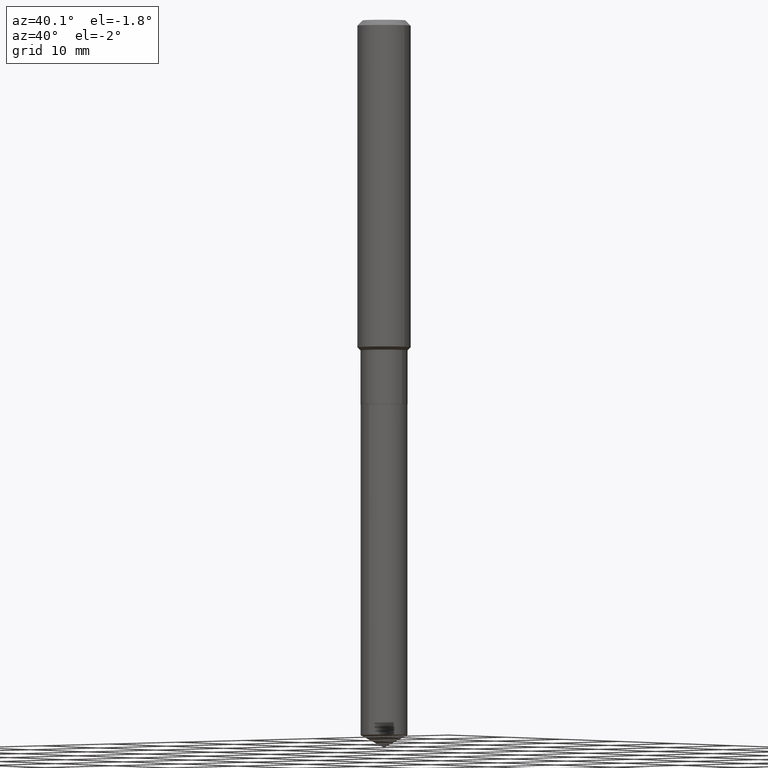
[diagram: clean part render]
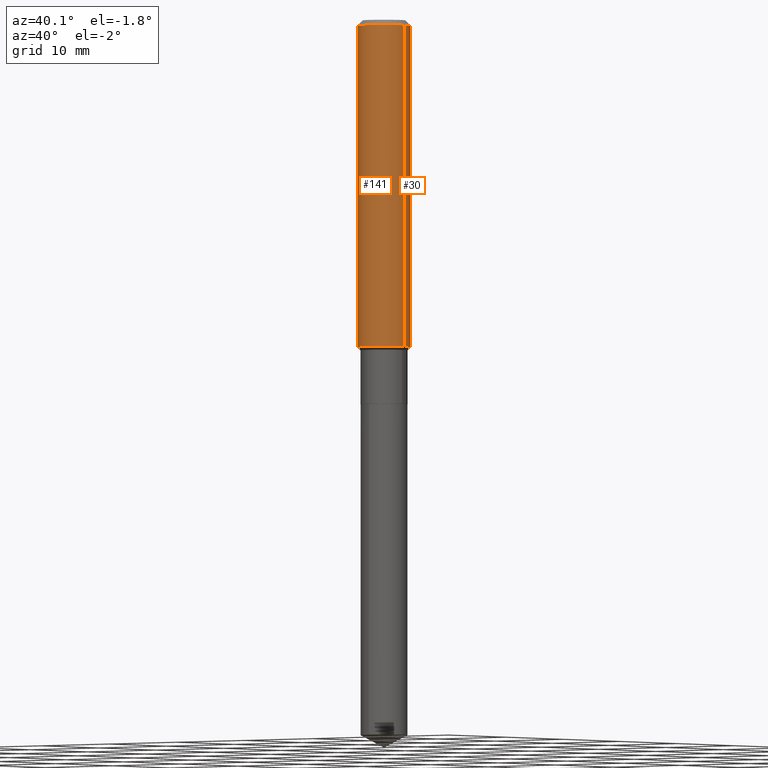
[diagram: same view with one multi-face feature highlighted, each face labeled with its STEP entity id]
A machine part, auxiliary view. The highlighted faces form ONE feature: a constant-radius fillet chain: 2 tangent blend faces with common blend radius 2.9997 mm. The faces share edges in the B-rep.
Their STEP definitions:
[1] entity #141 (Cylinder):
#2 = ORIENTED_EDGE ( 'NONE', *, *, #68, .F. ) ;
#24 = VECTOR ( 'NONE', #172, 39.37007874015748143 ) ;
#45 = VERTEX_POINT ( 'NONE', #49 ) ;
#47 = ORIENTED_EDGE ( 'NONE', *, *, #80, .F. ) ;
#49 = CARTESIAN_POINT ( 'NONE',  ( -0.1180999999999999966, -1.735065847976289334E-15, -0.02362000000000014088 ) ) ;
#61 = FACE_OUTER_BOUND ( 'NONE', #395, .T. ) ;
#68 = EDGE_CURVE ( 'NONE', #235, #45, #474, .T. ) ;
#80 = EDGE_CURVE ( 'NONE', #45, #199, #292, .T. ) ;
#86 = DIRECTION ( 'NONE',  ( 1.000000000000000000, -6.982962677686263555E-15, 0.000000000000000000 ) ) ;
#140 = CARTESIAN_POINT ( 'NONE',  ( 0.1180999999999999966, -9.071566814582237199E-16, -0.02362000000000014088 ) ) ;
#141 = ADVANCED_FACE ( 'NONE', ( #61 ), #176, .T. ) ;
#146 = DIRECTION ( 'NONE',  ( -2.445468806185136877E-29, 3.491481338843145188E-15, 1.000000000000000000 ) ) ;
#172 = DIRECTION ( 'NONE',  ( -2.445468806185136877E-29, 3.491481338843145188E-15, 1.000000000000000000 ) ) ;
#176 = CYLINDRICAL_SURFACE ( 'NONE', #397, 0.1181000000000000799 ) ;
#181 = LINE ( 'NONE', #486, #464 ) ;
#199 = VERTEX_POINT ( 'NONE', #140 ) ;
#235 = VERTEX_POINT ( 'NONE', #482 ) ;
#260 = CARTESIAN_POINT ( 'NONE',  ( 0.000000000000000000, 0.000000000000000000, 0.000000000000000000 ) ) ;
#265 = ORIENTED_EDGE ( 'NONE', *, *, #475, .T. ) ;
#272 = CARTESIAN_POINT ( 'NONE',  ( 3.548252964334323940E-29, -5.065964848594461971E-15, -1.450949999999999962 ) ) ;
#275 = AXIS2_PLACEMENT_3D ( 'NONE', #272, #417, #86 ) ;
#292 = CIRCLE ( 'NONE', #313, 0.1180999999999999966 ) ;
#312 = DIRECTION ( 'NONE',  ( -2.445468806185136597E-29, 3.491481338843145583E-15, 1.000000000000000000 ) ) ;
#313 = AXIS2_PLACEMENT_3D ( 'NONE', #362, #312, #463 ) ;
#327 = DIRECTION ( 'NONE',  ( -2.445468806185136597E-29, 3.491481338843145583E-15, 1.000000000000000000 ) ) ;
#342 = VERTEX_POINT ( 'NONE', #488 ) ;
#362 = CARTESIAN_POINT ( 'NONE',  ( 5.776197320209327532E-31, -8.246878922347559293E-17, -0.02362000000000014088 ) ) ;
#388 = CARTESIAN_POINT ( 'NONE',  ( -0.1181000000000000799, 8.391509709326788873E-16, -5.809262341591047988E-30 ) ) ;
#395 = EDGE_LOOP ( 'NONE', ( #2, #412, #265, #47 ) ) ;
#397 = AXIS2_PLACEMENT_3D ( 'NONE', #260, #327, #478 ) ;
#412 = ORIENTED_EDGE ( 'NONE', *, *, #447, .T. ) ;
#417 = DIRECTION ( 'NONE',  ( -2.445468806185136597E-29, 3.491481338843145583E-15, 1.000000000000000000 ) ) ;
#447 = EDGE_CURVE ( 'NONE', #235, #342, #472, .T. ) ;
#463 = DIRECTION ( 'NONE',  ( 1.000000000000000000, -6.982962677686266711E-15, 0.000000000000000000 ) ) ;
#464 = VECTOR ( 'NONE', #146, 39.37007874015748143 ) ;
#472 = CIRCLE ( 'NONE', #275, 0.1181000000000001632 ) ;
#474 = LINE ( 'NONE', #388, #24 ) ;
#475 = EDGE_CURVE ( 'NONE', #342, #199, #181, .T. ) ;
#478 = DIRECTION ( 'NONE',  ( 1.000000000000000000, -6.982962677686266711E-15, 4.876176775795936353E-29 ) ) ;
#482 = CARTESIAN_POINT ( 'NONE',  ( -0.1181000000000001632, -4.226813877661782197E-15, -1.450949999999999962 ) ) ;
#486 = CARTESIAN_POINT ( 'NONE',  ( 0.1181000000000000799, -8.246878922347486570E-16, 5.758764772215004644E-30 ) ) ;
#488 = CARTESIAN_POINT ( 'NONE',  ( 0.1181000000000001632, -5.890652740829211023E-15, -1.450949999999999962 ) ) ;
[2] entity #30 (Cylinder):
#24 = VECTOR ( 'NONE', #172, 39.37007874015748143 ) ;
#27 = EDGE_CURVE ( 'NONE', #199, #45, #252, .T. ) ;
#29 = AXIS2_PLACEMENT_3D ( 'NONE', #434, #105, #107 ) ;
#30 = ADVANCED_FACE ( 'NONE', ( #396 ), #390, .T. ) ;
#36 = ORIENTED_EDGE ( 'NONE', *, *, #475, .F. ) ;
#45 = VERTEX_POINT ( 'NONE', #49 ) ;
#49 = CARTESIAN_POINT ( 'NONE',  ( -0.1180999999999999966, -1.735065847976289334E-15, -0.02362000000000014088 ) ) ;
#56 = DIRECTION ( 'NONE',  ( -2.445468806185136597E-29, 3.491481338843145583E-15, 1.000000000000000000 ) ) ;
#60 = ORIENTED_EDGE ( 'NONE', *, *, #68, .T. ) ;
#68 = EDGE_CURVE ( 'NONE', #235, #45, #474, .T. ) ;
#102 = AXIS2_PLACEMENT_3D ( 'NONE', #394, #129, #286 ) ;
#105 = DIRECTION ( 'NONE',  ( -2.445468806185136597E-29, 3.491481338843145583E-15, 1.000000000000000000 ) ) ;
#107 = DIRECTION ( 'NONE',  ( 1.000000000000000000, -6.982962677686263555E-15, 0.000000000000000000 ) ) ;
#129 = DIRECTION ( 'NONE',  ( -2.445468806185136597E-29, 3.491481338843145583E-15, 1.000000000000000000 ) ) ;
#135 = EDGE_CURVE ( 'NONE', #342, #235, #298, .T. ) ;
#140 = CARTESIAN_POINT ( 'NONE',  ( 0.1180999999999999966, -9.071566814582237199E-16, -0.02362000000000014088 ) ) ;
#146 = DIRECTION ( 'NONE',  ( -2.445468806185136877E-29, 3.491481338843145188E-15, 1.000000000000000000 ) ) ;
#172 = DIRECTION ( 'NONE',  ( -2.445468806185136877E-29, 3.491481338843145188E-15, 1.000000000000000000 ) ) ;
#181 = LINE ( 'NONE', #486, #464 ) ;
#199 = VERTEX_POINT ( 'NONE', #140 ) ;
#210 = DIRECTION ( 'NONE',  ( 1.000000000000000000, -6.982962677686266711E-15, 4.876176775795936353E-29 ) ) ;
#235 = VERTEX_POINT ( 'NONE', #482 ) ;
#252 = CIRCLE ( 'NONE', #102, 0.1180999999999999966 ) ;
#273 = ORIENTED_EDGE ( 'NONE', *, *, #135, .T. ) ;
#282 = CARTESIAN_POINT ( 'NONE',  ( 0.000000000000000000, 0.000000000000000000, 0.000000000000000000 ) ) ;
#286 = DIRECTION ( 'NONE',  ( 1.000000000000000000, -6.982962677686266711E-15, 0.000000000000000000 ) ) ;
#298 = CIRCLE ( 'NONE', #29, 0.1181000000000001632 ) ;
#342 = VERTEX_POINT ( 'NONE', #488 ) ;
#361 = ORIENTED_EDGE ( 'NONE', *, *, #27, .F. ) ;
#388 = CARTESIAN_POINT ( 'NONE',  ( -0.1181000000000000799, 8.391509709326788873E-16, -5.809262341591047988E-30 ) ) ;
#390 = CYLINDRICAL_SURFACE ( 'NONE', #435, 0.1181000000000000799 ) ;
#394 = CARTESIAN_POINT ( 'NONE',  ( 5.776197320209327532E-31, -8.246878922347559293E-17, -0.02362000000000014088 ) ) ;
#396 = FACE_OUTER_BOUND ( 'NONE', #419, .T. ) ;
#419 = EDGE_LOOP ( 'NONE', ( #273, #60, #361, #36 ) ) ;
#434 = CARTESIAN_POINT ( 'NONE',  ( 3.548252964334323940E-29, -5.065964848594461971E-15, -1.450949999999999962 ) ) ;
#435 = AXIS2_PLACEMENT_3D ( 'NONE', #282, #56, #210 ) ;
#464 = VECTOR ( 'NONE', #146, 39.37007874015748143 ) ;
#474 = LINE ( 'NONE', #388, #24 ) ;
#475 = EDGE_CURVE ( 'NONE', #342, #199, #181, .T. ) ;
#482 = CARTESIAN_POINT ( 'NONE',  ( -0.1181000000000001632, -4.226813877661782197E-15, -1.450949999999999962 ) ) ;
#486 = CARTESIAN_POINT ( 'NONE',  ( 0.1181000000000000799, -8.246878922347486570E-16, 5.758764772215004644E-30 ) ) ;
#488 = CARTESIAN_POINT ( 'NONE',  ( 0.1181000000000001632, -5.890652740829211023E-15, -1.450949999999999962 ) ) ;